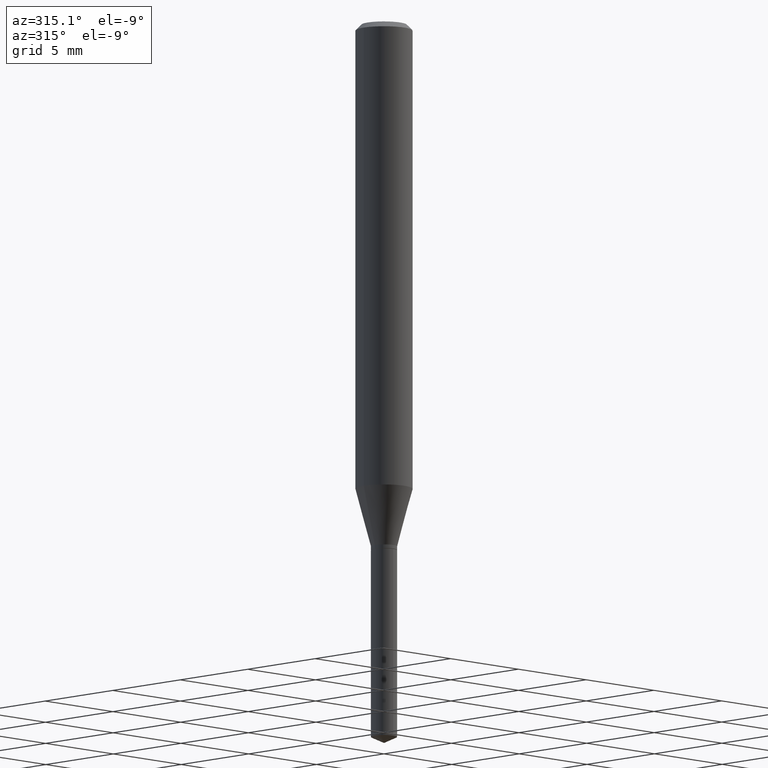
[diagram: clean part render]
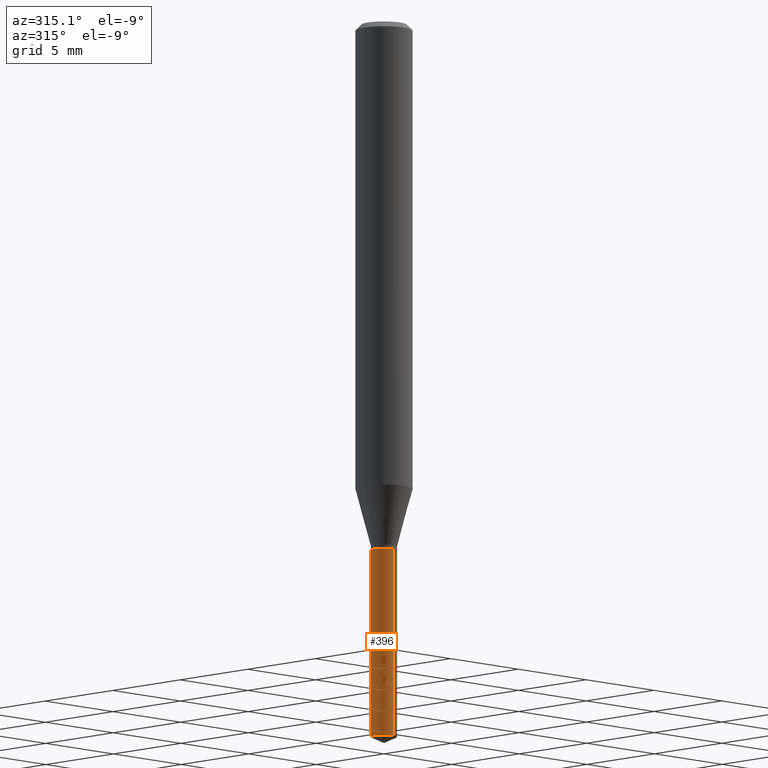
[diagram: same view with one face highlighted and labeled with its STEP entity id]
A machine part, auxiliary view. The second image highlights one B-rep face of the part: STEP entity #396.
In plain terms, the highlighted cylindrical surface (edge-blend (fillet) strip) has radius 0.6845 mm, axis along (-0, 0, 1).
Its self-contained STEP definition (entity closure, byte-faithful):
#1 = VECTOR ( 'NONE', #467, 39.37007874015748143 ) ;
#7 = ORIENTED_EDGE ( 'NONE', *, *, #219, .F. ) ;
#20 = CARTESIAN_POINT ( 'NONE',  ( 2.676565608369631794E-29, -3.821426325363822773E-15, -1.094499999999999806 ) ) ;
#24 = CARTESIAN_POINT ( 'NONE',  ( 2.676565608369631794E-29, -3.821426325363822773E-15, -1.094499999999999806 ) ) ;
#51 = LINE ( 'NONE', #399, #1 ) ;
#106 = VERTEX_POINT ( 'NONE', #325 ) ;
#120 = AXIS2_PLACEMENT_3D ( 'NONE', #400, #322, #263 ) ;
#124 = EDGE_CURVE ( 'NONE', #106, #271, #51, .T. ) ;
#137 = CARTESIAN_POINT ( 'NONE',  ( 1.914912672873833000E-16, 0.02694999999999617840, -1.094500000000000028 ) ) ;
#140 = DIRECTION ( 'NONE',  ( -2.445470214571802396E-29, 3.491479321953280158E-15, 1.000000000000000000 ) ) ;
#142 = AXIS2_PLACEMENT_3D ( 'NONE', #24, #334, #374 ) ;
#145 = ORIENTED_EDGE ( 'NONE', *, *, #248, .T. ) ;
#166 = DIRECTION ( 'NONE',  ( -2.445470214571802116E-29, 3.491479321953280158E-15, 1.000000000000000000 ) ) ;
#176 = CARTESIAN_POINT ( 'NONE',  ( -1.881908441636181167E-16, -0.02695000000000382159, -1.094499999999999806 ) ) ;
#200 = CIRCLE ( 'NONE', #142, 0.02695000000000000173 ) ;
#208 = DIRECTION ( 'NONE',  ( -6.982962677686265133E-15, -1.000000000000000000, 5.068363624609022710E-15 ) ) ;
#219 = EDGE_CURVE ( 'NONE', #271, #388, #200, .T. ) ;
#220 = ORIENTED_EDGE ( 'NONE', *, *, #404, .T. ) ;
#227 = VECTOR ( 'NONE', #140, 39.37007874015748143 ) ;
#242 = EDGE_LOOP ( 'NONE', ( #418, #220, #145, #7 ) ) ;
#246 = CARTESIAN_POINT ( 'NONE',  ( -1.881908441636086010E-16, -0.02695000000000517468, -1.483533008612722748 ) ) ;
#248 = EDGE_CURVE ( 'NONE', #312, #388, #328, .T. ) ;
#255 = CYLINDRICAL_SURFACE ( 'NONE', #341, 0.02695000000000000173 ) ;
#259 = CARTESIAN_POINT ( 'NONE',  ( -1.881908441636181167E-16, -0.02695000000000382159, -1.094499999999999806 ) ) ;
#263 = DIRECTION ( 'NONE',  ( -6.982962677686265133E-15, -1.000000000000000000, 0.000000000000000000 ) ) ;
#271 = VERTEX_POINT ( 'NONE', #137 ) ;
#312 = VERTEX_POINT ( 'NONE', #246 ) ;
#322 = DIRECTION ( 'NONE',  ( -2.445470214571802116E-29, 3.491479321953280158E-15, 1.000000000000000000 ) ) ;
#325 = CARTESIAN_POINT ( 'NONE',  ( 1.914912672873832260E-16, 0.02694999999999482185, -1.483533008612722748 ) ) ;
#328 = LINE ( 'NONE', #176, #227 ) ;
#334 = DIRECTION ( 'NONE',  ( -2.445470214571802116E-29, 3.491479321953280158E-15, 1.000000000000000000 ) ) ;
#341 = AXIS2_PLACEMENT_3D ( 'NONE', #20, #166, #208 ) ;
#363 = FACE_OUTER_BOUND ( 'NONE', #242, .T. ) ;
#374 = DIRECTION ( 'NONE',  ( -6.982962677686265133E-15, -1.000000000000000000, 5.068363624609022710E-15 ) ) ;
#388 = VERTEX_POINT ( 'NONE', #259 ) ;
#396 = ADVANCED_FACE ( 'NONE', ( #363 ), #255, .T. ) ;
#399 = CARTESIAN_POINT ( 'NONE',  ( 1.914912672873737351E-16, 0.02694999999999618187, -1.094500000000000028 ) ) ;
#400 = CARTESIAN_POINT ( 'NONE',  ( 3.627934243417300809E-29, -5.179727030492415655E-15, -1.483533008612722748 ) ) ;
#404 = EDGE_CURVE ( 'NONE', #106, #312, #478, .T. ) ;
#418 = ORIENTED_EDGE ( 'NONE', *, *, #124, .F. ) ;
#467 = DIRECTION ( 'NONE',  ( -2.445470214571802396E-29, 3.491479321953280158E-15, 1.000000000000000000 ) ) ;
#478 = CIRCLE ( 'NONE', #120, 0.02695000000000000173 ) ;